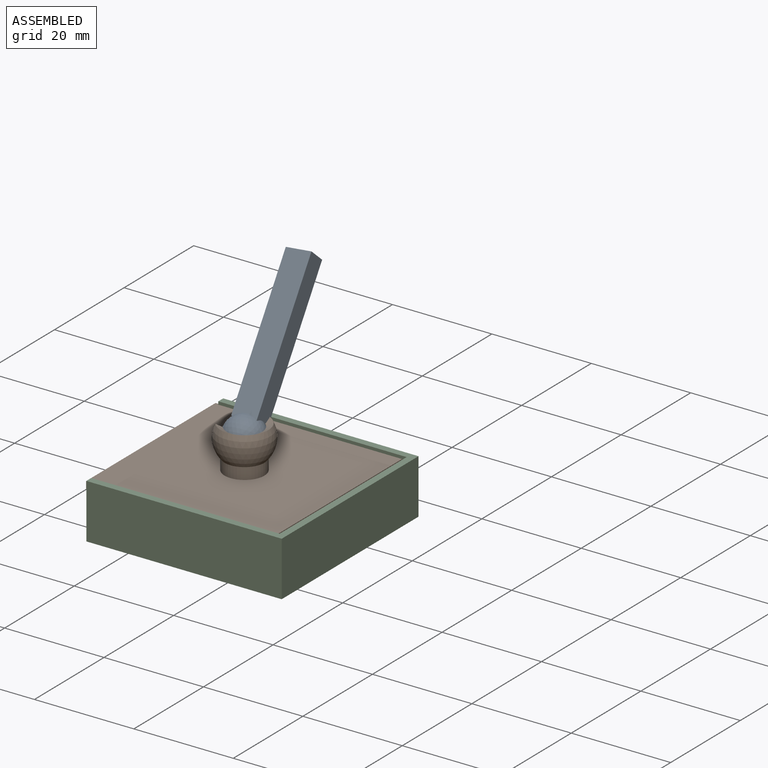
[diagram: assembled view]
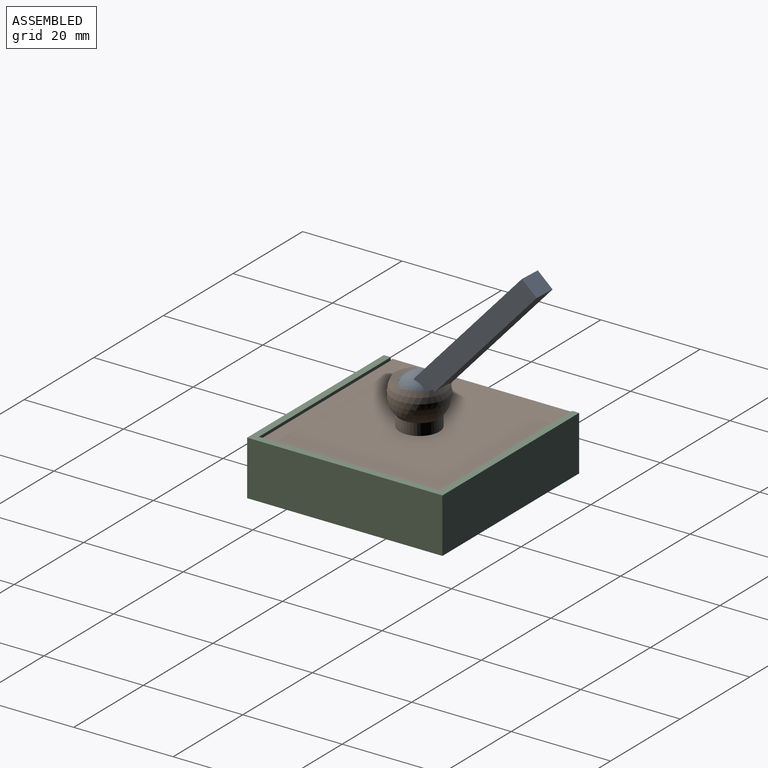
[diagram: assembled view, second angle]
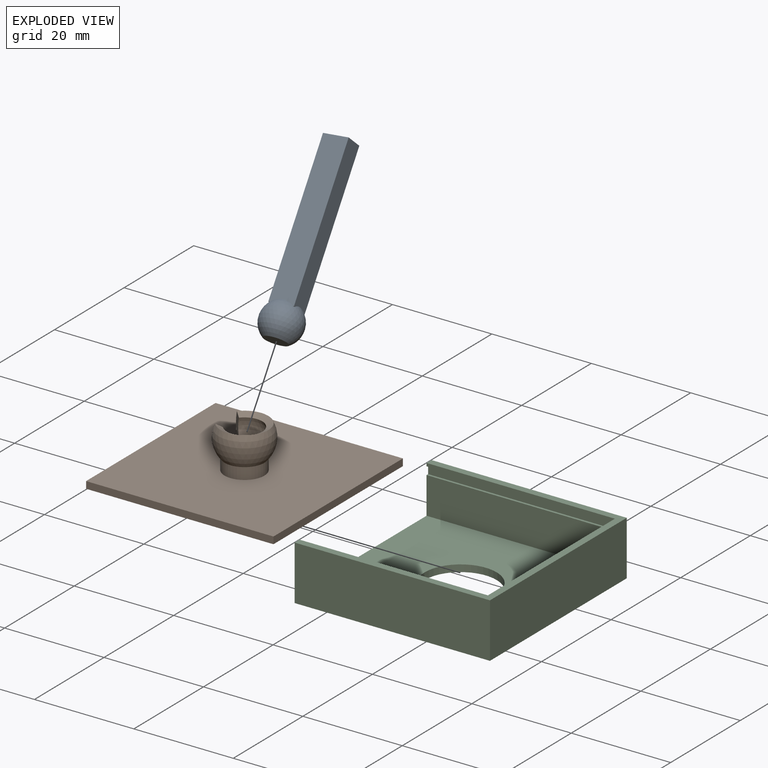
[diagram: exploded view]
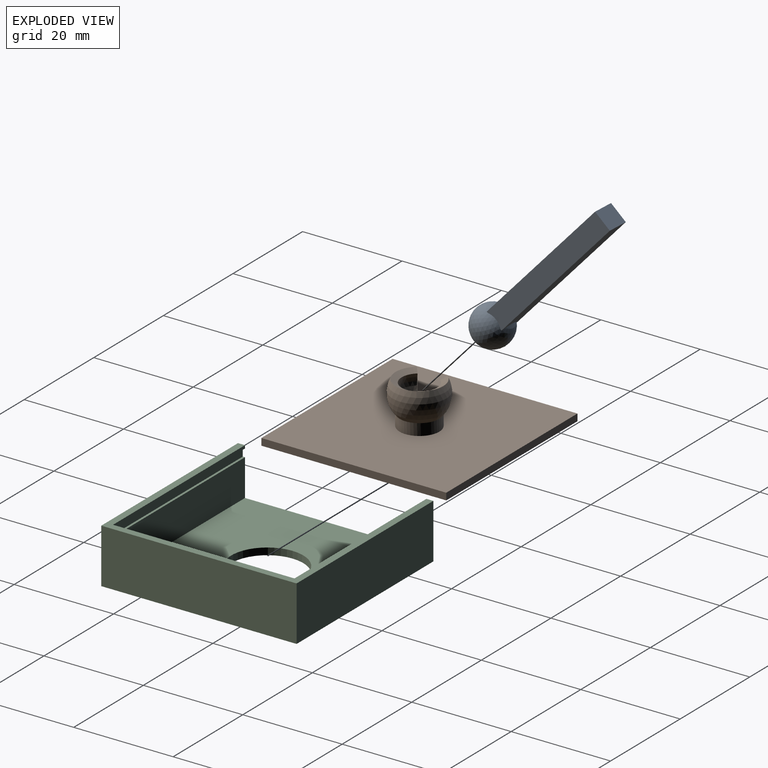
[diagram: exploded view, second angle]
ASSEMBLY  parts=3 mates=2
PART A: 11 faces, bbox 8x8x35.9 mm
  f0: plane 0.3x0.23mm, normal (0,0,1), area 0mm2, adj f3,f6,f10
  f1: plane 0.3x0.23mm, normal (0,0,1), area 0mm2, adj f3,f4,f10
  f2: plane 0.3x0.23mm, normal (0,0,1), area 0mm2, adj f4,f5,f10
  f3: plane 30x5mm, normal (0,1,0), area 147.4mm2, adj f0,f1,f4,f6,f7,f10
  f4: plane 30x4mm, normal (-1,0,0), area 118.8mm2, adj f1,f2,f3,f5,f7,f10
  f5: plane 30x5mm, normal (0,-1,0), area 147.4mm2, adj f2,f4,f6,f7,f8,f10
  f6: plane 30x4mm, normal (1,0,0), area 118.8mm2, adj f0,f3,f5,f7,f8,f10
  f7: plane 5x4mm, normal (0,0,-1), area 20mm2, adj f3,f4,f5,f6
  f8: plane 0.3x0.23mm, normal (0,0,1), area 0mm2, adj f5,f6,f10
  f9: plane 4.67x4.67mm, normal (0,0,1), area 17.2mm2, adj f10
  f10: sphere r=4mm, area 159.5mm2, adj f0,f1,f2,f3,f4,f5,f6,f8
PART B: 13 faces, bbox 37.2x37.7x9.9 mm
  f0: plane 37.2x1.4mm, normal (0,1,0), area 52.1mm2, adj f1,f3,f4,f5
  f1: plane 37.7x1.4mm, normal (-1,0,0), area 52.8mm2, adj f0,f2,f4,f5
  f2: plane 37.2x1.4mm, normal (0,-1,0), area 52.1mm2, adj f1,f3,f4,f5
  f3: plane 37.7x1.4mm, normal (1,0,0), area 52.8mm2, adj f0,f2,f4,f5
  f4: plane 37.7x37.2mm, normal (0,0,-1), area 1402.4mm2, adj f0,f1,f2,f3
  f5: plane 37.7x37.2mm, normal (0,0,1), area 1352.2mm2, adj f0,f1,f2,f3,f6
  f6: cylinder r=4mm len=8mm, axis (0,0,1), area 58.7mm2, adj f5,f7,f8
  f7: sphere r=5.42mm, area 13.3mm2, adj f6,f11,f12
  f8: sphere r=5.42mm, area 163.6mm2, adj f6,f9,f11,f12
  f9: cone r=3.57mm half-angle=62.5deg, axis (0,0,1), area 28.7mm2, adj f8,f10,f11,f12
  f10: sphere r=4.03mm, area 115.7mm2, adj f9,f11,f12
  f11: plane 7.93x4.16mm, normal (-0.77,-0.64,0), area 13.6mm2, adj f7,f8,f9,f10,f12
  f12: plane 7.93x4.16mm, normal (0.77,-0.64,0), area 13.6mm2, adj f7,f8,f9,f10,f11
PART C: 19 faces, bbox 39.3x39.3x11 mm
  f0: plane 37.9x7.4mm, normal (0,-1,0), area 280.5mm2, adj f4,f10,f11,f18
  f1: plane 37.9x7.4mm, normal (0,1,0), area 280.5mm2, adj f4,f10,f11,f13
  f2: plane 39.3x39.3mm, normal (0,0,1), area 161.1mm2, adj f3,f4,f5,f6,f8,f9,f10
  f3: plane 39.3x11mm, normal (0,1,0), area 432.3mm2, adj f2,f4,f6,f7
  f4: plane 39.3x11mm, normal (-1,0,0), area 80.5mm2, adj f0,f1,f2,f3,f5,f7,f8,f9
  f5: plane 39.3x11mm, normal (0,-1,0), area 432.3mm2, adj f2,f4,f6,f7
  f6: plane 39.3x11mm, normal (1,0,0), area 432.3mm2, adj f2,f3,f5,f7
  f7: plane 39.3x39.3mm, normal (0,0,-1), area 1379.4mm2, adj f3,f4,f5,f6,f12
  f8: plane 37.9x0.6mm, normal (0,-1,0), area 22.7mm2, adj f2,f4,f10,f17
  f9: plane 37.9x0.6mm, normal (0,1,0), area 22.7mm2, adj f2,f4,f10,f14
  f10: plane 37.4x9.6mm, normal (-1,0,0), area 351.8mm2, adj f0,f1,f2,f8,f9,f11,f13,f14
  f11: plane 37.9x36.5mm, normal (0,0,1), area 1218.2mm2, adj f0,f1,f4,f10,f12
  f12: cylinder r=7.25mm len=14.5mm, axis (0,0,1), area 63.8mm2, adj f7,f11
  f13: plane 37.9x0.45mm, normal (0,0,1), area 17.1mm2, adj f1,f4,f10,f15
  f14: plane 37.9x0.45mm, normal (0,0,-1), area 17.1mm2, adj f4,f9,f10,f15
  f15: plane 37.9x1.6mm, normal (0,1,0), area 60.6mm2, adj f4,f10,f13,f14
  f16: plane 37.9x1.6mm, normal (0,-1,0), area 60.6mm2, adj f4,f10,f17,f18
  f17: plane 37.9x0.45mm, normal (0,0,-1), area 17.1mm2, adj f4,f8,f10,f16
  f18: plane 37.9x0.45mm, normal (0,0,1), area 17.1mm2, adj f0,f4,f10,f16
PLACE A rot(axis=(-0.01,0.94,-0.35),174.7deg) t=(30.74,14.96,5.77)mm
PLACE B rot(axis=(0,0,-1),90deg) t=(30.99,13.23,-2.19)mm
PLACE C t=(32.66,13.13,-11.09)mm fixed
MATE ball A.f10 <-> B.f6  axis (0.1,-0.66,-0.75) through (30.99,13.23,3.81)mm
MATE slider B.f2 <-> C.f4  axis (-1,0,0) through (12.14,31.83,-2.89)mm
